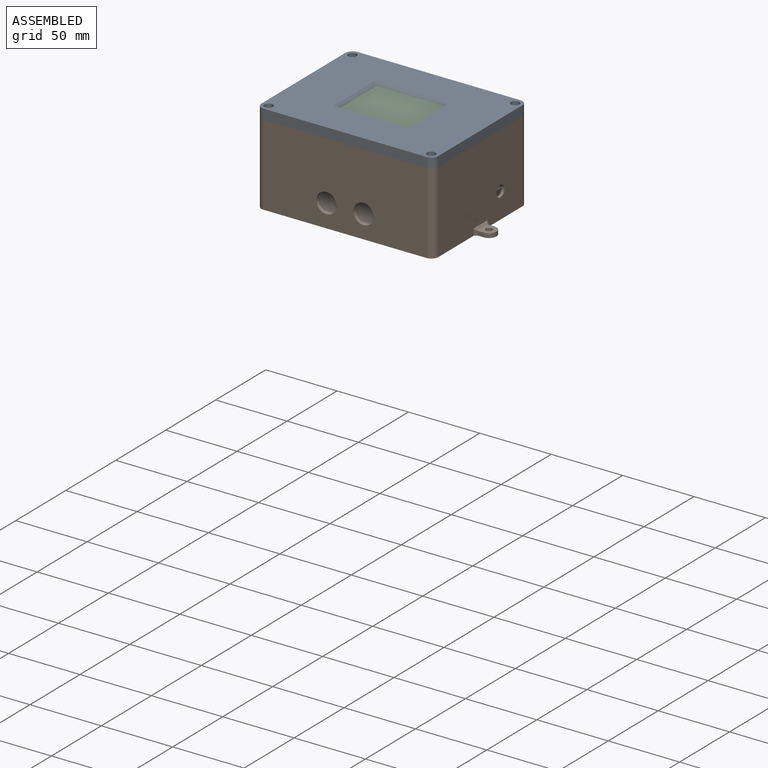
[diagram: assembled view]
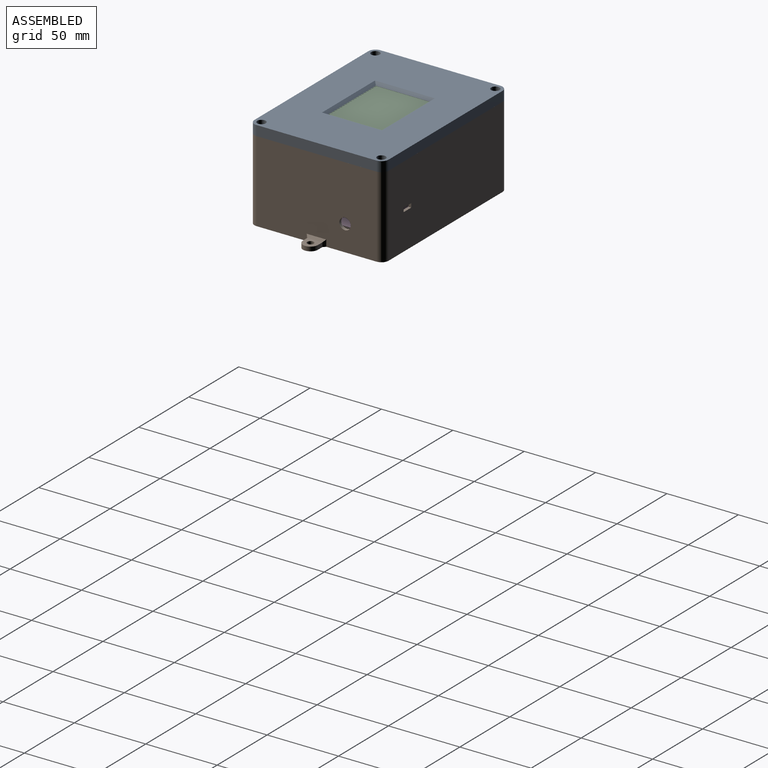
[diagram: assembled view, second angle]
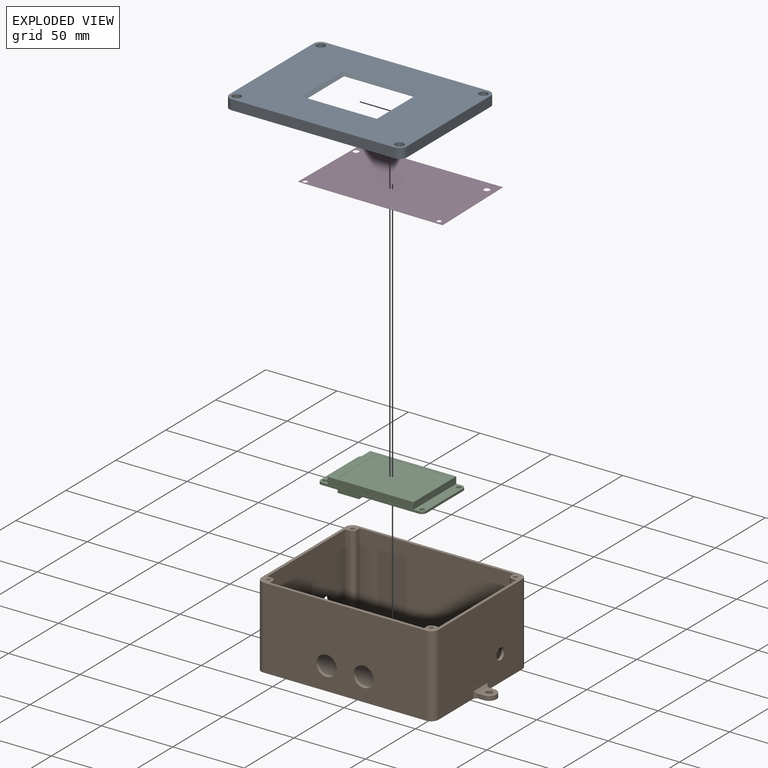
[diagram: exploded view]
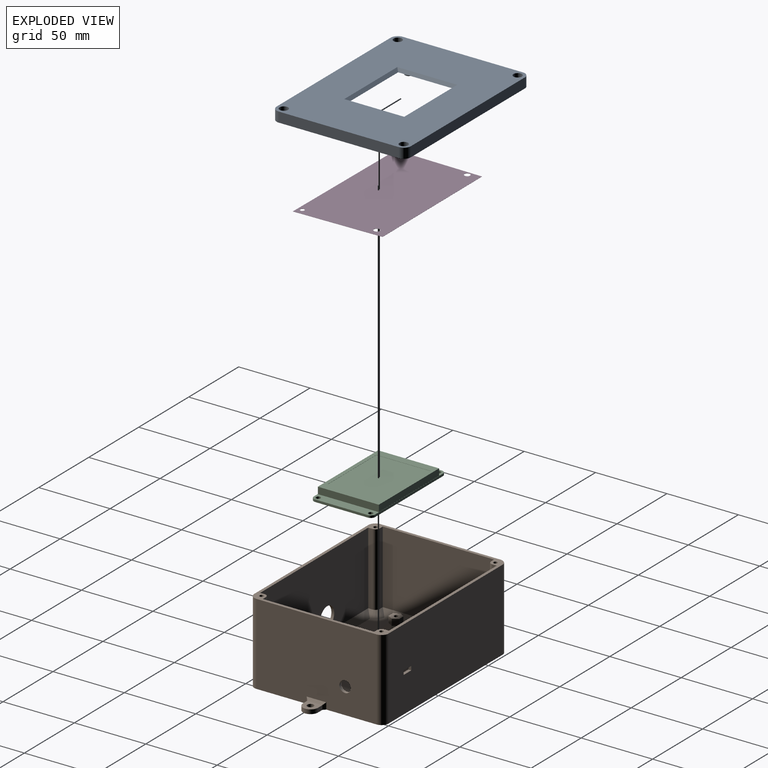
[diagram: exploded view, second angle]
ASSEMBLY  parts=4 mates=3
PART A: 76 faces, bbox 124x94x8 mm
  f0: plane 116.4x86.4mm, normal (0,0,-1), area 7992.2mm2, adj f5,f6,f7,f8,f9,f10,f11,f12
  f1: plane 6x6mm, normal (0,0,1), area 19.7mm2, adj f30,f53
  f2: plane 6x6mm, normal (0,0,1), area 19.7mm2, adj f29,f52
  f3: plane 6x6mm, normal (0,0,1), area 19.7mm2, adj f27,f54
  f4: plane 124x94mm, normal (0,0,-1), area 1060.6mm2, adj f20,f21,f22,f23,f24,f25,f26,f27
  f5: plane 6x1.2mm, normal (-1,0,0), area 7.2mm2, adj f0,f6,f32,f50
  f6: cylinder r=4.8mm len=6mm, axis (0,0,-1), area 45.2mm2, adj f0,f5,f7,f50
  f7: plane 6x1.2mm, normal (0,-1,0), area 7.2mm2, adj f0,f6,f8,f50
  f8: plane 74.4x6mm, normal (-1,0,0), area 446.4mm2, adj f0,f7,f9,f50
  f9: plane 6x1.2mm, normal (0,1,0), area 7.2mm2, adj f0,f8,f10,f50
  f10: cylinder r=4.8mm len=6mm, axis (0,0,-1), area 45.2mm2, adj f0,f9,f11,f50
  f11: plane 6x1.2mm, normal (-1,0,0), area 7.2mm2, adj f0,f10,f12,f50
  f12: plane 104.4x6mm, normal (0,1,0), area 626.4mm2, adj f0,f11,f13,f50
  f13: plane 6x1.2mm, normal (1,0,0), area 7.2mm2, adj f0,f12,f14,f50
  f14: cylinder r=4.8mm len=6mm, axis (0,0,-1), area 45.2mm2, adj f0,f13,f15,f50
  f15: plane 6x1.2mm, normal (0,1,0), area 7.2mm2, adj f0,f14,f16,f50
  f16: plane 74.4x6mm, normal (1,0,0), area 446.4mm2, adj f0,f15,f17,f50
  f17: plane 6x1.2mm, normal (0,-1,0), area 7.2mm2, adj f0,f16,f18,f50
  f18: cylinder r=4.8mm len=6mm, axis (0,0,-1), area 45.2mm2, adj f0,f17,f19,f50
  f19: plane 6x1.2mm, normal (1,0,0), area 7.2mm2, adj f0,f18,f32,f50
  f20: cylinder r=5mm len=7mm, axis (0,0,-1), area 55mm2, adj f4,f21,f28,f55
  f21: plane 114x7mm, normal (0,1,0), area 798mm2, adj f4,f20,f22,f55
  f22: cylinder r=5mm len=7mm, axis (0,0,-1), area 55mm2, adj f4,f21,f23,f55
  f23: plane 84x7mm, normal (-1,0,0), area 588mm2, adj f4,f22,f24,f55
  f24: cylinder r=5mm len=7mm, axis (0,0,-1), area 55mm2, adj f4,f23,f25,f55
  f25: plane 114x7mm, normal (0,-1,0), area 798mm2, adj f4,f24,f26,f55
  f26: cylinder r=5mm len=7mm, axis (0,0,-1), area 55mm2, adj f4,f25,f28,f55
  f27: cylinder r=1.65mm len=3.3mm, axis (0,0,-1), area 31.1mm2, adj f3,f4
  f28: plane 84x7mm, normal (1,0,0), area 588mm2, adj f4,f20,f26,f55
  f29: cylinder r=1.65mm len=3.3mm, axis (0,0,-1), area 31.1mm2, adj f2,f4
  f30: cylinder r=1.65mm len=3.3mm, axis (0,0,-1), area 31.1mm2, adj f1,f4
  f31: cylinder r=1.65mm len=3.3mm, axis (0,0,-1), area 31.1mm2, adj f4,f33
  f32: plane 104.4x6mm, normal (0,-1,0), area 626.4mm2, adj f0,f5,f19,f50
  f33: plane 6x6mm, normal (0,0,1), area 19.7mm2, adj f31,f51
  f34: plane 2.7x1mm, normal (-1,0,0), area 2.7mm2, adj f4,f35,f49,f50
  f35: cylinder r=3.3mm len=3.3mm, axis (0,0,1), area 5.2mm2, adj f4,f34,f36,f50
  f36: plane 2.7x1mm, normal (0,1,0), area 2.7mm2, adj f4,f35,f37,f50
  f37: plane 77.4x1mm, normal (-1,0,0), area 77.4mm2, adj f4,f36,f38,f50
  f38: plane 2.7x1mm, normal (0,-1,0), area 2.7mm2, adj f4,f37,f39,f50
  f39: cylinder r=3.3mm len=3.3mm, axis (0,0,1), area 5.2mm2, adj f4,f38,f40,f50
  f40: plane 2.7x1mm, normal (-1,0,0), area 2.7mm2, adj f4,f39,f41,f50
  f41: plane 107.4x1mm, normal (0,-1,0), area 107.4mm2, adj f4,f40,f42,f50
  f42: plane 2.7x1mm, normal (1,0,0), area 2.7mm2, adj f4,f41,f43,f50
  f43: cylinder r=3.3mm len=3.3mm, axis (0,0,1), area 5.2mm2, adj f4,f42,f44,f50
  f44: plane 2.7x1mm, normal (0,-1,0), area 2.7mm2, adj f4,f43,f45,f50
  f45: plane 77.4x1mm, normal (1,0,0), area 77.4mm2, adj f4,f44,f46,f50
  f46: plane 2.7x1mm, normal (0,1,0), area 2.7mm2, adj f4,f45,f47,f50
  f47: cylinder r=3.3mm len=3.3mm, axis (0,0,1), area 5.2mm2, adj f4,f46,f48,f50
  f48: plane 2.7x1mm, normal (1,0,0), area 2.7mm2, adj f4,f47,f49,f50
  f49: plane 107.4x1mm, normal (0,1,0), area 107.4mm2, adj f4,f34,f48,f50
  f50: plane 119.4x89.4mm, normal (0,0,-1), area 607mm2, adj f5,f6,f7,f8,f9,f10,f11,f12
  f51: cylinder r=3mm len=6mm, axis (0,0,-1), area 75.4mm2, adj f33,f55
  f52: cylinder r=3mm len=6mm, axis (0,0,-1), area 75.4mm2, adj f2,f55
  f53: cylinder r=3mm len=6mm, axis (0,0,-1), area 75.4mm2, adj f1,f55
  f54: cylinder r=3mm len=6mm, axis (0,0,-1), area 75.4mm2, adj f3,f55
  f55: plane 124x94mm, normal (0,0,1), area 9295.4mm2, adj f20,f21,f22,f23,f24,f25,f26,f28
  f56: cylinder r=1mm len=4.7mm, axis (0,0,1), area 29.5mm2, adj f58,f59
  f57: cylinder r=2.5mm len=5mm, axis (0,0,1), area 73.8mm2, adj f0,f58
  f58: plane 5x5mm, normal (0,0,-1), area 16.5mm2, adj f56,f57
  f59: plane 2x2mm, normal (0,0,-1), area 3.1mm2, adj f56
  f60: cylinder r=1mm len=4.7mm, axis (0,0,1), area 29.5mm2, adj f62,f63
  f61: cylinder r=2.5mm len=5mm, axis (0,0,1), area 73.8mm2, adj f0,f62
  f62: plane 5x5mm, normal (0,0,-1), area 16.5mm2, adj f60,f61
  f63: plane 2x2mm, normal (0,0,-1), area 3.1mm2, adj f60
  f64: cylinder r=1mm len=4.7mm, axis (0,0,1), area 29.5mm2, adj f66,f67
  f65: cylinder r=2.5mm len=5mm, axis (0,0,1), area 73.8mm2, adj f0,f66
  f66: plane 5x5mm, normal (0,0,-1), area 16.5mm2, adj f64,f65
  f67: plane 2x2mm, normal (0,0,-1), area 3.1mm2, adj f64
  f68: cylinder r=1mm len=4.7mm, axis (0,0,1), area 29.5mm2, adj f70,f71
  f69: cylinder r=2.5mm len=5mm, axis (0,0,1), area 73.8mm2, adj f0,f70
  f70: plane 5x5mm, normal (0,0,-1), area 16.5mm2, adj f68,f69
  f71: plane 2x2mm, normal (0,0,-1), area 3.1mm2, adj f68
  f72: plane 53x2mm, normal (0,-0.71,0.71), area 144.2mm2, adj f0,f55,f73,f74
  f73: plane 42x2mm, normal (0.71,0,0.71), area 113.1mm2, adj f0,f55,f72,f75
  f74: plane 42x2mm, normal (-0.71,0,0.71), area 113.1mm2, adj f0,f55,f72,f75
  f75: plane 53x2mm, normal (0,0.71,0.71), area 144.2mm2, adj f0,f55,f73,f74
PART B: 171 faces, bbox 146.5x94x57 mm
  f0: plane 112x82mm, normal (0,0,1), area 8260.4mm2, adj f131,f132,f134,f137,f138,f139,f140,f143
  f1: plane 114x57mm, normal (0,-1,0), area 6190.1mm2, adj f8,f9,f11,f30,f55,f56
  f2: plane 108x51mm, normal (0,1,0), area 5200.1mm2, adj f22,f23,f30,f55,f56,f149
  f3: plane 114x57mm, normal (0,1,0), area 6476.6mm2, adj f6,f7,f11,f30,f51,f52,f53,f54
  f4: plane 108x51mm, normal (0,-1,0), area 5486.6mm2, adj f15,f16,f30,f51,f52,f53,f54,f140
  f5: plane 84x57mm, normal (-1,0,0), area 4674.7mm2, adj f7,f8,f11,f30,f48,f49,f50,f58
  f6: cylinder r=5mm len=57mm, axis (0,0,1), area 447.7mm2, adj f3,f10,f11,f30
  f7: cylinder r=5mm len=57mm, axis (0,0,1), area 447.7mm2, adj f3,f5,f11,f30
  f8: cylinder r=5mm len=57mm, axis (0,0,1), area 447.7mm2, adj f1,f5,f11,f30
  f9: cylinder r=5mm len=57mm, axis (0,0,1), area 447.7mm2, adj f1,f10,f11,f30
  f10: plane 84x57mm, normal (1,0,0), area 4674.7mm2, adj f6,f9,f11,f30,f45,f46,f47,f57
  f11: plane 146.5x94mm, normal (0,0,-1), area 11820.4mm2, adj f1,f3,f5,f6,f7,f8,f9,f10
  f12: plane 78x51mm, normal (1,0,0), area 3927.7mm2, adj f13,f29,f30,f58,f137
  f13: plane 51x3mm, normal (0,-1,0), area 153mm2, adj f12,f14,f30,f133
  f14: cylinder r=3mm len=51mm, axis (0,0,-1), area 240.3mm2, adj f13,f15,f30,f134
  f15: plane 51x3mm, normal (1,0,0), area 153mm2, adj f4,f14,f30,f135
  f16: plane 51x3mm, normal (-1,0,0), area 153mm2, adj f4,f17,f30,f141
  f17: cylinder r=3mm len=51mm, axis (0,0,-1), area 240.3mm2, adj f16,f18,f30,f146
  f18: plane 51x3mm, normal (0,-1,0), area 153mm2, adj f17,f19,f30,f147
  f19: plane 78x51mm, normal (-1,0,0), area 3927.7mm2, adj f18,f20,f30,f57,f150
  f20: plane 51x3mm, normal (0,1,0), area 153mm2, adj f19,f21,f30,f152
  f21: cylinder r=3mm len=51mm, axis (0,0,-1), area 240.3mm2, adj f20,f22,f30,f151
  f22: plane 51x3mm, normal (-1,0,0), area 153mm2, adj f2,f21,f30,f148
  f23: plane 51x3mm, normal (1,0,0), area 153mm2, adj f2,f24,f30,f142
  f24: cylinder r=3mm len=51mm, axis (0,0,-1), area 240.3mm2, adj f23,f29,f30,f143
  f25: cylinder r=1.35mm len=55mm, axis (0,0,-1), area 466.5mm2, adj f30,f34
  f26: cylinder r=1.35mm len=55mm, axis (0,0,-1), area 466.5mm2, adj f30,f31
  f27: cylinder r=1.35mm len=55mm, axis (0,0,-1), area 466.5mm2, adj f30,f32
  f28: cylinder r=1.35mm len=55mm, axis (0,0,-1), area 466.5mm2, adj f30,f33
  f29: plane 51x3mm, normal (0,1,0), area 153mm2, adj f12,f24,f30,f136
  f30: plane 124x94mm, normal (0,0,1), area 947.9mm2, adj f1,f2,f3,f4,f5,f6,f7,f8
  f31: plane 2.7x2.7mm, normal (0,0,1), area 5.7mm2, adj f26
  f32: plane 2.7x2.7mm, normal (0,0,1), area 5.7mm2, adj f27
  f33: plane 2.7x2.7mm, normal (0,0,1), area 5.7mm2, adj f28
  f34: plane 2.7x2.7mm, normal (0,0,1), area 5.7mm2, adj f25
  f35: plane 4.4x3mm, normal (0,1,0), area 13.2mm2, adj f11,f38,f39,f48
  f36: plane 4.4x3mm, normal (0,-1,0), area 13.2mm2, adj f11,f38,f39,f50
  f37: cylinder r=2.25mm len=4.5mm, axis (0,0,-1), area 42.4mm2, adj f11,f39
  f38: cylinder r=5.25mm len=10.5mm, axis (0,0,-1), area 49.5mm2, adj f11,f35,f36,f39
  f39: plane 10.5x9.65mm, normal (0,0,1), area 73.6mm2, adj f35,f36,f37,f38,f49
  f40: plane 4.4x3mm, normal (0,1,0), area 13.2mm2, adj f11,f41,f44,f47
  f41: cylinder r=5.25mm len=10.5mm, axis (0,0,-1), area 49.5mm2, adj f11,f40,f42,f44
  f42: plane 4.4x3mm, normal (0,-1,0), area 13.2mm2, adj f11,f41,f44,f45
  f43: cylinder r=2.25mm len=4.5mm, axis (0,0,-1), area 42.4mm2, adj f11,f44
  f44: plane 10.5x9.65mm, normal (0,0,1), area 73.6mm2, adj f40,f41,f42,f43,f46
  f45: plane 4.6x1.6mm, normal (0.71,-0.71,0), area 8.6mm2, adj f10,f11,f42,f46
  f46: plane 13.7x1.6mm, normal (0.71,0,0.71), area 27.4mm2, adj f10,f44,f45,f47
  f47: plane 4.6x1.6mm, normal (0.71,0.71,0), area 8.6mm2, adj f10,f11,f40,f46
  f48: plane 4.6x1.6mm, normal (-0.71,0.71,0), area 8.6mm2, adj f5,f11,f35,f49
  f49: plane 13.7x1.6mm, normal (-0.71,0,0.71), area 27.4mm2, adj f5,f39,f48,f50
  f50: plane 4.6x1.6mm, normal (-0.71,-0.71,0), area 8.6mm2, adj f5,f11,f36,f49
  f51: plane 7.65x2mm, normal (0,0,-1), area 15.3mm2, adj f3,f4,f52,f54
  f52: plane 2.8x2mm, normal (-1,0,0), area 5.6mm2, adj f3,f4,f51,f53
  f53: plane 7.65x2mm, normal (0,0,1), area 15.3mm2, adj f3,f4,f52,f54
  f54: plane 2.8x2mm, normal (1,0,0), area 5.6mm2, adj f3,f4,f51,f53
  f55: cylinder r=7mm len=14mm, axis (0,-1,0), area 88mm2, adj f1,f2
  f56: cylinder r=7mm len=14mm, axis (0,-1,0), area 88mm2, adj f1,f2
  f57: cylinder r=4mm len=8mm, axis (1,0,0), area 50.3mm2, adj f10,f19
  f58: cylinder r=4mm len=8mm, axis (1,0,0), area 50.3mm2, adj f5,f12
  f59: plane 2.88x2.7mm, normal (0.87,-0.5,0), area 9mm2, adj f60,f64,f65,f67
  f60: plane 3.32x2.7mm, normal (0,-1,0), area 9mm2, adj f59,f61,f65,f67
  f61: plane 2.88x2.7mm, normal (-0.87,-0.5,0), area 9mm2, adj f60,f62,f65,f67
  f62: plane 2.88x2.7mm, normal (-0.87,0.5,0), area 9mm2, adj f61,f63,f65,f67
  f63: plane 3.32x2.7mm, normal (0,1,0), area 9mm2, adj f62,f64,f65,f67
  f64: plane 2.88x2.7mm, normal (0.87,0.5,0), area 9mm2, adj f59,f63,f65,f67
  f65: plane 6.64x5.75mm, normal (0,0,1), area 22.9mm2, adj f59,f60,f61,f62,f63,f64,f66
  f66: cylinder r=1.35mm len=2.9mm, axis (0,0,-1), area 24.6mm2, adj f65,f127
  f67: plane 6.64x5.75mm, normal (0,0,-1), area 22.9mm2, adj f59,f60,f61,f62,f63,f64,f68
  f68: cylinder r=1.35mm len=2.9mm, axis (0,0,-1), area 24.6mm2, adj f67,f69
  f69: plane 8.54x7.4mm, normal (0,0,1), area 41.7mm2, adj f68,f70,f71,f72,f73,f74,f75
  f70: plane 4.5x3.7mm, normal (0.87,-0.5,0), area 19.2mm2, adj f69,f71,f75,f159
  f71: plane 4.5x4.27mm, normal (0,-1,0), area 19.2mm2, adj f69,f70,f72,f160
  f72: plane 4.5x3.7mm, normal (-0.87,-0.5,0), area 19.2mm2, adj f69,f71,f73,f162
  f73: plane 4.5x3.7mm, normal (-0.87,0.5,0), area 19.2mm2, adj f69,f72,f74,f164
  f74: plane 4.5x4.27mm, normal (0,1,0), area 19.2mm2, adj f69,f73,f75,f163
  f75: plane 4.5x3.7mm, normal (0.87,0.5,0), area 19.2mm2, adj f69,f70,f74,f161
  f76: plane 2.88x2.7mm, normal (0.87,-0.5,0), area 9mm2, adj f77,f81,f82,f84
  f77: plane 3.32x2.7mm, normal (0,-1,0), area 9mm2, adj f76,f78,f82,f84
  f78: plane 2.88x2.7mm, normal (-0.87,-0.5,0), area 9mm2, adj f77,f79,f82,f84
  f79: plane 2.88x2.7mm, normal (-0.87,0.5,0), area 9mm2, adj f78,f80,f82,f84
  f80: plane 3.32x2.7mm, normal (0,1,0), area 9mm2, adj f79,f81,f82,f84
  f81: plane 2.88x2.7mm, normal (0.87,0.5,0), area 9mm2, adj f76,f80,f82,f84
  f82: plane 6.64x5.75mm, normal (0,0,1), area 22.9mm2, adj f76,f77,f78,f79,f80,f81,f83
  f83: cylinder r=1.35mm len=2.9mm, axis (0,0,-1), area 24.6mm2, adj f82,f128
  f84: plane 6.64x5.75mm, normal (0,0,-1), area 22.9mm2, adj f76,f77,f78,f79,f80,f81,f85
  f85: cylinder r=1.35mm len=2.9mm, axis (0,0,-1), area 24.6mm2, adj f84,f86
  f86: plane 8.54x7.4mm, normal (0,0,1), area 41.7mm2, adj f85,f87,f88,f89,f90,f91,f92
  f87: plane 4.5x3.7mm, normal (0.87,-0.5,0), area 19.2mm2, adj f86,f88,f92,f144
  f88: plane 4.5x4.27mm, normal (0,-1,0), area 19.2mm2, adj f86,f87,f89,f138
  f89: plane 4.5x3.7mm, normal (-0.87,-0.5,0), area 19.2mm2, adj f86,f88,f90,f131
  f90: plane 4.5x3.7mm, normal (-0.87,0.5,0), area 19.2mm2, adj f86,f89,f91,f132
  f91: plane 4.5x4.27mm, normal (0,1,0), area 19.2mm2, adj f86,f90,f92,f139
  f92: plane 4.5x3.7mm, normal (0.87,0.5,0), area 19.2mm2, adj f86,f87,f91,f145
  f93: plane 2.88x2.7mm, normal (0.87,-0.5,0), area 9mm2, adj f94,f98,f99,f101
  f94: plane 3.32x2.7mm, normal (0,-1,0), area 9mm2, adj f93,f95,f99,f101
  f95: plane 2.88x2.7mm, normal (-0.87,-0.5,0), area 9mm2, adj f94,f96,f99,f101
  f96: plane 2.88x2.7mm, normal (-0.87,0.5,0), area 9mm2, adj f95,f97,f99,f101
  f97: plane 3.32x2.7mm, normal (0,1,0), area 9mm2, adj f96,f98,f99,f101
  f98: plane 2.88x2.7mm, normal (0.87,0.5,0), area 9mm2, adj f93,f97,f99,f101
  f99: plane 6.64x5.75mm, normal (0,0,1), area 22.9mm2, adj f93,f94,f95,f96,f97,f98,f100
  f100: cylinder r=1.35mm len=2.9mm, axis (0,0,-1), area 24.6mm2, adj f99,f129
  f101: plane 6.64x5.75mm, normal (0,0,-1), area 22.9mm2, adj f93,f94,f95,f96,f97,f98,f102
  f102: cylinder r=1.35mm len=2.9mm, axis (0,0,-1), area 24.6mm2, adj f101,f103
  f103: plane 8.54x7.4mm, normal (0,0,1), area 41.7mm2, adj f102,f104,f105,f106,f107,f108,f109
  f104: plane 4.5x3.7mm, normal (0.87,-0.5,0), area 19.2mm2, adj f103,f105,f109,f158
  f105: plane 4.5x4.27mm, normal (0,-1,0), area 19.2mm2, adj f103,f104,f106,f157
  f106: plane 4.5x3.7mm, normal (-0.87,-0.5,0), area 19.2mm2, adj f103,f105,f107,f155
  f107: plane 4.5x3.7mm, normal (-0.87,0.5,0), area 19.2mm2, adj f103,f106,f108,f153
  f108: plane 4.5x4.27mm, normal (0,1,0), area 19.2mm2, adj f103,f107,f109,f154
  f109: plane 4.5x3.7mm, normal (0.87,0.5,0), area 19.2mm2, adj f103,f104,f108,f156
  f110: cylinder r=1.35mm len=2.9mm, axis (0,0,-1), area 24.6mm2, adj f126,f130
  f111: plane 4.5x3.7mm, normal (0.87,0.5,0), area 19.2mm2, adj f112,f117,f118,f170
  f112: plane 4.5x4.27mm, normal (0,1,0), area 19.2mm2, adj f111,f113,f118,f168
  f113: plane 4.5x3.7mm, normal (-0.87,0.5,0), area 19.2mm2, adj f112,f114,f118,f166
  f114: plane 4.5x3.7mm, normal (-0.87,-0.5,0), area 19.2mm2, adj f113,f115,f118,f165
  f115: plane 4.5x4.27mm, normal (0,-1,0), area 19.2mm2, adj f114,f117,f118,f167
  f116: cylinder r=1.35mm len=2.9mm, axis (0,0,-1), area 24.6mm2, adj f118,f125
  f117: plane 4.5x3.7mm, normal (0.87,-0.5,0), area 19.2mm2, adj f111,f115,f118,f169
  f118: plane 8.54x7.4mm, normal (0,0,1), area 41.7mm2, adj f111,f112,f113,f114,f115,f116,f117
  f119: plane 2.88x2.7mm, normal (0.87,0.5,0), area 9mm2, adj f120,f124,f125,f126
  f120: plane 3.32x2.7mm, normal (0,1,0), area 9mm2, adj f119,f121,f125,f126
  f121: plane 2.88x2.7mm, normal (-0.87,0.5,0), area 9mm2, adj f120,f122,f125,f126
  f122: plane 2.88x2.7mm, normal (-0.87,-0.5,0), area 9mm2, adj f121,f123,f125,f126
  f123: plane 3.32x2.7mm, normal (0,-1,0), area 9mm2, adj f122,f124,f125,f126
  f124: plane 2.88x2.7mm, normal (0.87,-0.5,0), area 9mm2, adj f119,f123,f125,f126
  f125: plane 6.64x5.75mm, normal (0,0,-1), area 22.9mm2, adj f116,f119,f120,f121,f122,f123,f124
  f126: plane 6.64x5.75mm, normal (0,0,1), area 22.9mm2, adj f110,f119,f120,f121,f122,f123,f124
  f127: plane 2.7x2.7mm, normal (0,0,1), area 5.7mm2, adj f66
  f128: plane 2.7x2.7mm, normal (0,0,1), area 5.7mm2, adj f83
  f129: plane 2.7x2.7mm, normal (0,0,1), area 5.7mm2, adj f100
  f130: plane 2.7x2.7mm, normal (0,0,1), area 5.7mm2, adj f110
  f131: plane 7.7x6.76mm, normal (-0.61,-0.35,0.71), area 37.2mm2, adj f0,f89,f132,f138
  f132: plane 7.7x6.76mm, normal (-0.61,0.35,0.71), area 37.2mm2, adj f0,f90,f131,f139
  f133: plane 3x3mm, normal (0,-0.71,0.71), area 6.4mm2, adj f13,f134,f137
  f134: cone r=3mm half-angle=45deg, axis (0,0,-1), area 43mm2, adj f0,f14,f133,f135,f137,f140
  f135: plane 3x3mm, normal (0.71,0,0.71), area 6.4mm2, adj f15,f134,f140
  f136: plane 3x3mm, normal (0,0.71,0.71), area 6.4mm2, adj f29,f137,f143
  f137: plane 78x4mm, normal (0.71,0,0.71), area 418.7mm2, adj f0,f12,f133,f134,f136,f143
  f138: plane 8.89x4mm, normal (0,-0.71,0.71), area 37.2mm2, adj f0,f88,f131,f144
  f139: plane 8.89x4mm, normal (0,0.71,0.71), area 37.2mm2, adj f0,f91,f132,f145
  f140: plane 108x4mm, normal (0,-0.71,0.71), area 588.4mm2, adj f0,f4,f134,f135,f141,f146
  f141: plane 3x3mm, normal (-0.71,0,0.71), area 6.4mm2, adj f16,f140,f146
  f142: plane 3x3mm, normal (0.71,0,0.71), area 6.4mm2, adj f23,f143,f149
  f143: cone r=7mm half-angle=45deg, axis (0,0,-1), area 43mm2, adj f0,f24,f136,f137,f142,f149
  f144: plane 7.7x6.67mm, normal (0.61,-0.35,0.71), area 37.2mm2, adj f0,f87,f138,f145,f150
  f145: plane 7.7x6.67mm, normal (0.61,0.35,0.71), area 37.2mm2, adj f0,f92,f139,f144,f150
  f146: cone r=7mm half-angle=45deg, axis (0,0,-1), area 43mm2, adj f0,f17,f140,f141,f147,f150
  f147: plane 3x3mm, normal (0,-0.71,0.71), area 6.4mm2, adj f18,f146,f150
  f148: plane 3x3mm, normal (-0.71,0,0.71), area 6.4mm2, adj f22,f149,f151
  f149: plane 108x4mm, normal (0,0.71,0.71), area 588.4mm2, adj f0,f2,f142,f143,f148,f151
  f150: plane 78x4mm, normal (-0.71,0,0.71), area 418.6mm2, adj f0,f19,f144,f145,f146,f147,f151,f152
  f151: cone r=3mm half-angle=45deg, axis (0,0,-1), area 43mm2, adj f0,f21,f148,f149,f150,f152
  f152: plane 3x3mm, normal (0,0.71,0.71), area 6.4mm2, adj f20,f150,f151
  f153: plane 7.7x6.76mm, normal (-0.61,0.35,0.71), area 37.2mm2, adj f0,f107,f154,f155
  f154: plane 8.89x4mm, normal (0,0.71,0.71), area 37.2mm2, adj f0,f108,f153,f156
  f155: plane 7.7x6.76mm, normal (-0.61,-0.35,0.71), area 37.2mm2, adj f0,f106,f153,f157
  f156: plane 7.7x6.76mm, normal (0.61,0.35,0.71), area 37.2mm2, adj f0,f109,f154,f158
  f157: plane 8.89x4mm, normal (0,-0.71,0.71), area 37.2mm2, adj f0,f105,f155,f158
  f158: plane 7.7x6.76mm, normal (0.61,-0.35,0.71), area 37.2mm2, adj f0,f104,f156,f157
  f159: plane 7.7x6.76mm, normal (0.61,-0.35,0.71), area 37.2mm2, adj f0,f70,f160,f161
  f160: plane 8.89x4mm, normal (0,-0.71,0.71), area 37.2mm2, adj f0,f71,f159,f162
  f161: plane 7.7x6.76mm, normal (0.61,0.35,0.71), area 37.2mm2, adj f0,f75,f159,f163
  f162: plane 7.7x6.76mm, normal (-0.61,-0.35,0.71), area 37.2mm2, adj f0,f72,f160,f164
  f163: plane 8.89x4mm, normal (0,0.71,0.71), area 37.2mm2, adj f0,f74,f161,f164
  f164: plane 7.7x6.76mm, normal (-0.61,0.35,0.71), area 37.2mm2, adj f0,f73,f162,f163
  f165: plane 7.7x6.76mm, normal (-0.61,-0.35,0.71), area 37.2mm2, adj f0,f114,f166,f167
  f166: plane 7.7x6.76mm, normal (-0.61,0.35,0.71), area 37.2mm2, adj f0,f113,f165,f168
  f167: plane 8.89x4mm, normal (0,-0.71,0.71), area 37.2mm2, adj f0,f115,f165,f169
  f168: plane 8.89x4mm, normal (0,0.71,0.71), area 37.2mm2, adj f0,f112,f166,f170
  f169: plane 7.7x6.76mm, normal (0.61,-0.35,0.71), area 37.2mm2, adj f0,f117,f167,f170
  f170: plane 7.7x6.76mm, normal (0.61,0.35,0.71), area 37.2mm2, adj f0,f111,f168,f169
PART C: 32 faces, bbox 74x42.9x12.3 mm
  f0: plane 36.9x1.6mm, normal (1,0,0), area 59mm2, adj f8,f9,f28,f31
  f1: plane 68x1.6mm, normal (0,1,0), area 108.8mm2, adj f8,f9,f28,f29
  f2: plane 36.9x7.6mm, normal (-1,0,0), area 149mm2, adj f8,f9,f24,f26,f27,f29,f30
  f3: cylinder r=1.6mm len=3.2mm, axis (0,0,-1), area 16.1mm2, adj f8,f9
  f4: cylinder r=1.6mm len=3.2mm, axis (0,0,-1), area 16.1mm2, adj f8,f9
  f5: cylinder r=1.6mm len=3.2mm, axis (0,0,-1), area 16.1mm2, adj f8,f9
  f6: cylinder r=1.6mm len=3.2mm, axis (0,0,-1), area 16.1mm2, adj f8,f9
  f7: plane 68x3.6mm, normal (0,-1,0), area 138.8mm2, adj f8,f9,f20,f22,f23,f30,f31
  f8: plane 74x42.9mm, normal (0,0,1), area 560.4mm2, adj f0,f1,f2,f3,f4,f5,f6,f7
  f9: plane 74x42.9mm, normal (0,0,-1), area 2789.7mm2, adj f0,f1,f2,f3,f4,f5,f6,f7
  f10: plane 42.72x4.7mm, normal (-1,0,0), area 200.8mm2, adj f8,f11,f13,f14
  f11: plane 60.26x4.7mm, normal (0,-1,0), area 283.2mm2, adj f8,f10,f12,f14
  f12: plane 42.72x4.7mm, normal (1,0,0), area 200.8mm2, adj f8,f11,f13,f14
  f13: plane 60.26x4.7mm, normal (0,1,0), area 283.2mm2, adj f8,f10,f12,f14
  f14: plane 60.26x42.72mm, normal (0,0,1), area 713.8mm2, adj f10,f11,f12,f13,f15,f16,f17,f18
  f15: plane 38x0.1mm, normal (1,0,0), area 3.8mm2, adj f14,f16,f18,f19
  f16: plane 48.96x0.1mm, normal (0,1,0), area 4.9mm2, adj f14,f15,f17,f19
  f17: plane 38x0.1mm, normal (-1,0,0), area 3.8mm2, adj f14,f16,f18,f19
  f18: plane 48.96x0.1mm, normal (0,-1,0), area 4.9mm2, adj f14,f15,f17,f19
  f19: plane 48.96x38mm, normal (0,0,1), area 1860.5mm2, adj f15,f16,f17,f18
  f20: plane 15x2mm, normal (-1,0,0), area 30mm2, adj f7,f9,f21,f23
  f21: plane 15x2mm, normal (0,1,0), area 30mm2, adj f9,f20,f22,f23
  f22: plane 15x2mm, normal (1,0,0), area 30mm2, adj f7,f9,f21,f23
  f23: plane 15x15mm, normal (0,0,-1), area 225mm2, adj f7,f20,f21,f22
  f24: plane 8x6mm, normal (0,1,0), area 48mm2, adj f2,f9,f25,f27
  f25: plane 15x6mm, normal (1,0,0), area 90mm2, adj f9,f24,f26,f27
  f26: plane 8x6mm, normal (0,-1,0), area 48mm2, adj f2,f9,f25,f27
  f27: plane 15x8mm, normal (0,0,-1), area 120mm2, adj f2,f24,f25,f26
  f28: cylinder r=3mm len=3mm, axis (0,0,-1), area 7.5mm2, adj f0,f1,f8,f9
  f29: cylinder r=3mm len=3mm, axis (0,0,1), area 7.5mm2, adj f1,f2,f8,f9
  f30: cylinder r=3mm len=3mm, axis (0,0,-1), area 7.5mm2, adj f2,f7,f8,f9
  f31: cylinder r=3mm len=3mm, axis (0,0,1), area 7.5mm2, adj f0,f7,f8,f9
PART D: 10 faces, bbox 101.9x62x0.1 mm
  f0: plane 60.92x0.85mm, normal (-1,0.01,0), area 6.1mm2, adj f1,f7,f8,f9
  f1: plane 101.88x0.81mm, normal (-0.01,-1,0), area 10.2mm2, adj f0,f2,f8,f9
  f2: plane 62.04x1.21mm, normal (1,0.02,0), area 6.2mm2, adj f1,f7,f8,f9
  f3: cylinder r=1.97mm len=3.93mm, axis (0,0,-1), area 1.2mm2, adj f8,f9
  f4: cylinder r=1.48mm len=2.97mm, axis (0,0,-1), area 0.9mm2, adj f8,f9
  f5: cylinder r=1.43mm len=2.87mm, axis (0,0,-1), area 0.9mm2, adj f8,f9
  f6: cylinder r=2.06mm len=4.13mm, axis (0,0,-1), area 1.3mm2, adj f8,f9
  f7: plane 99.82x0.31mm, normal (0,1,0), area 10mm2, adj f0,f2,f8,f9
  f8: plane 101.88x62.04mm, normal (0,0,1), area 6161mm2, adj f0,f1,f2,f3,f4,f5,f6,f7
  f9: plane 101.88x62.04mm, normal (0,0,-1), area 6161mm2, adj f0,f1,f2,f3,f4,f5,f6,f7
PLACE A t=(45.23,54.68,-15.08)mm
PLACE B t=(45.23,54.68,-15.08)mm
PLACE C t=(45.23,54.68,38.62)mm
PLACE D t=(53.54,59.89,-6.68)mm
MATE fastened A.f60 <-> C.f4  axis (0,0,-1) through (11.23,36.32,40.22)mm
MATE fastened A.f6 <-> B.f6  axis (0,0,-1) through (102.23,96.68,39.92)mm
MATE fastened B.f110 <-> D.f3  axis (0,0,1) through (-0.8,84.65,-6.58)mm
